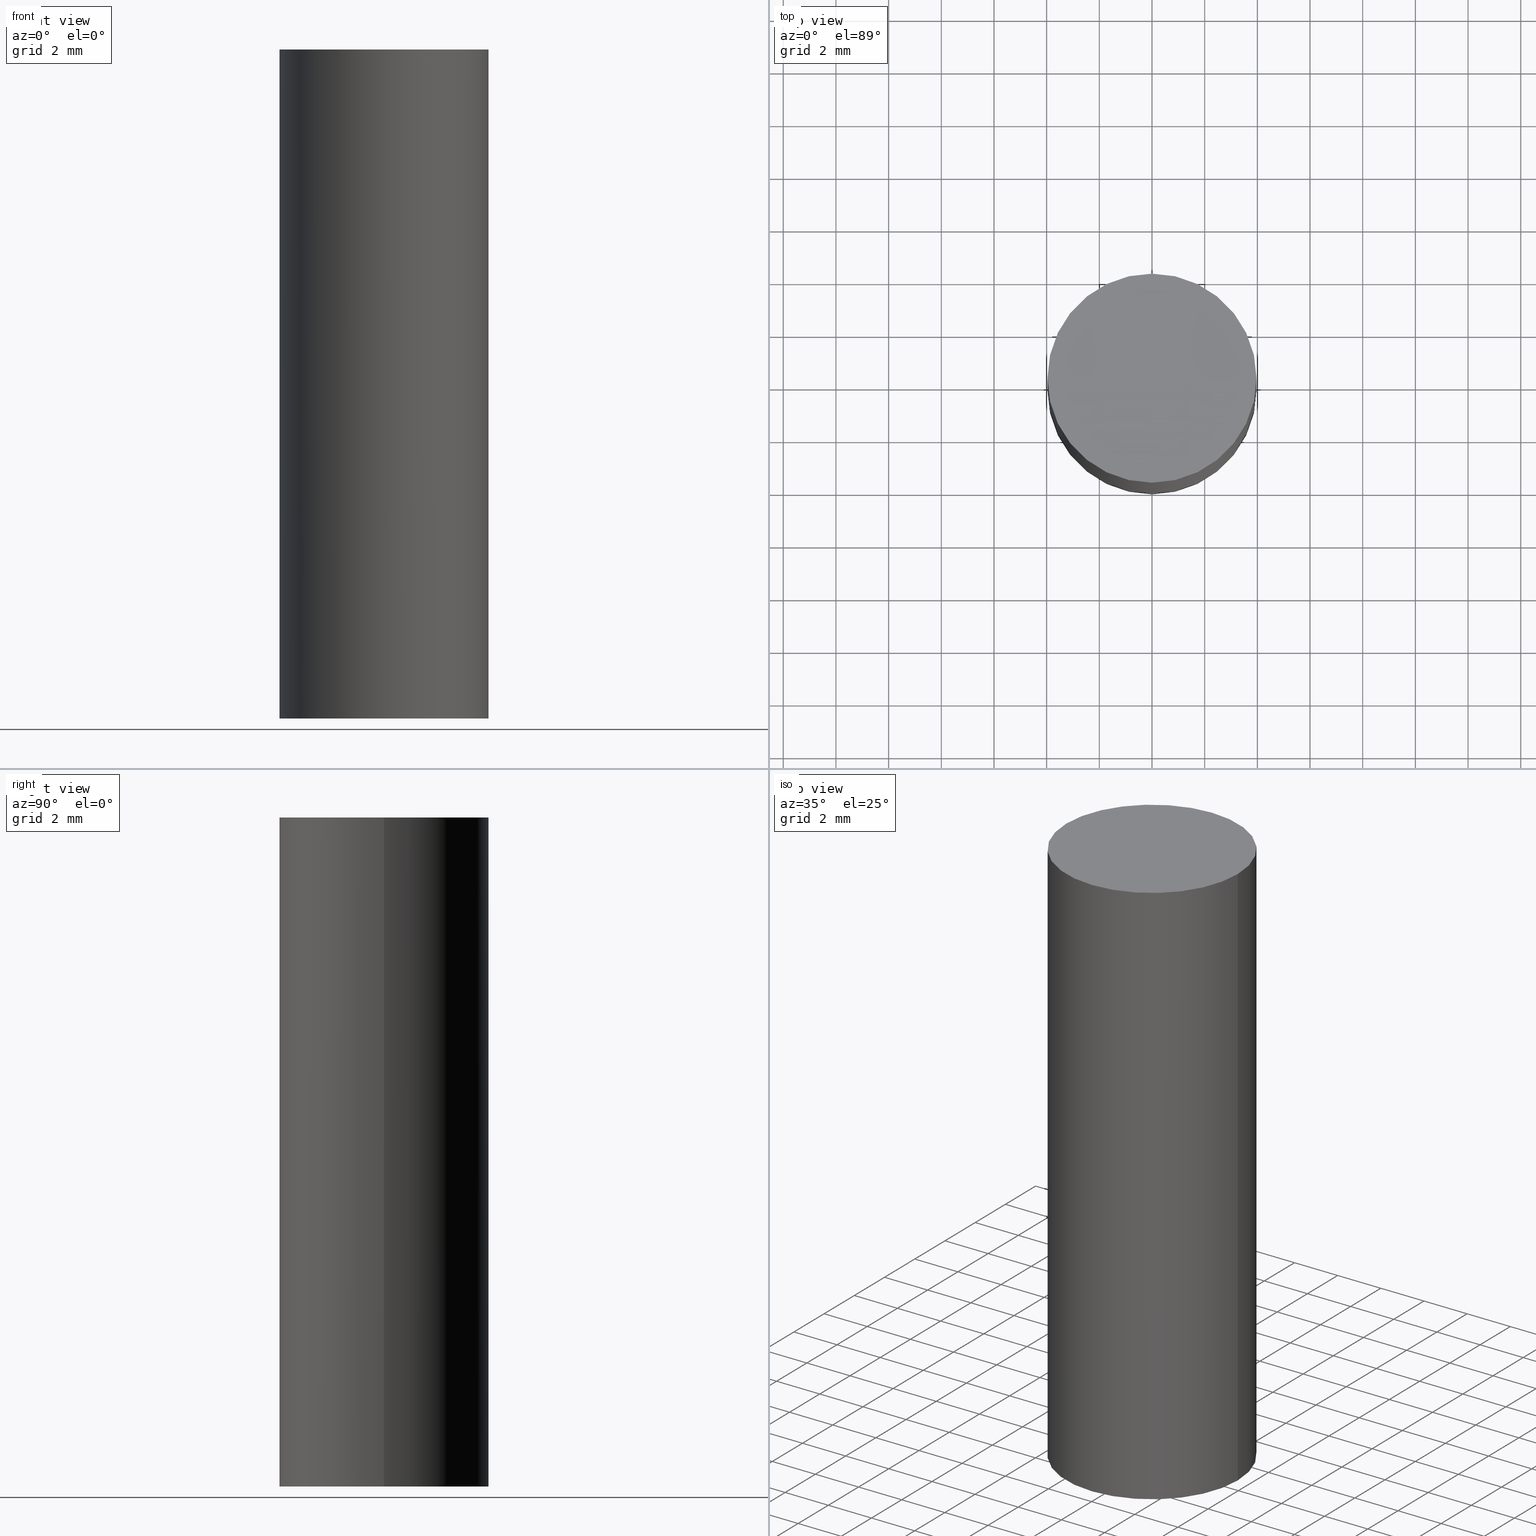
[diagram: canonical four-view strip — front | top / right | iso, engineering-drawing reading convention]
A machine part, canonical four-view strip (front | top / right | iso — engineering-drawing reading convention). The complete STEP part file that produces these views, byte-faithful:
ISO-10303-21;
HEADER;
FILE_DESCRIPTION (( 'STEP AP203' ),
    '1' );
FILE_NAME ('91025.STEP',
    '2024-03-12T20:21:44',
    ( '' ),
    ( '' ),
    'SwSTEP 2.0',
    'SolidWorks 2023',
    '' );
FILE_SCHEMA (( 'CONFIG_CONTROL_DESIGN' ));
ENDSEC;

DATA;
#1 = APPROVAL_ROLE ( '' ) ;
#2 = APPROVAL_PERSON_ORGANIZATION ( #121, #60, #58 ) ;
#3 = CC_DESIGN_PERSON_AND_ORGANIZATION_ASSIGNMENT ( #162, #44, ( #156 ) ) ;
#4 = DIRECTION ( 'NONE',  ( 0.000000000000000000, 0.000000000000000000, 1.000000000000000000 ) ) ;
#5 = COORDINATED_UNIVERSAL_TIME_OFFSET ( 5, 0, .BEHIND. ) ;
#6 = PERSON_AND_ORGANIZATION ( #171, #94 ) ;
#7 = EDGE_LOOP ( 'NONE', ( #35, #172 ) ) ;
#8 = SECURITY_CLASSIFICATION_LEVEL ( 'unclassified' ) ;
#9 = DATE_TIME_ROLE ( 'creation_date' ) ;
#10 = ORIENTED_EDGE ( 'NONE', *, *, #84, .T. ) ;
#11 = VERTEX_POINT ( 'NONE', #100 ) ;
#12 = DIRECTION ( 'NONE',  ( -2.445468806185136597E-29, 3.491481338843145583E-15, 1.000000000000000000 ) ) ;
#13 = CC_DESIGN_APPROVAL ( #178, ( #142 ) ) ;
#14 = CYLINDRICAL_SURFACE ( 'NONE', #53, 0.1562500000000000000 ) ;
#15 = CC_DESIGN_APPROVAL ( #160, ( #174 ) ) ;
#16 = CARTESIAN_POINT ( 'NONE',  ( -0.1562500000000000000, 1.110223024625156540E-15, -7.685836078523291160E-30 ) ) ;
#17 = DESIGN_CONTEXT ( 'detailed design', #118, 'design' ) ;
#18 = APPLICATION_PROTOCOL_DEFINITION ( 'international standard', 'config_control_design', 1994, #87 ) ;
#19 = COORDINATED_UNIVERSAL_TIME_OFFSET ( 5, 0, .BEHIND. ) ;
#20 = LOCAL_TIME ( 16, 21, 44.00000000000000000, #5 ) ;
#21 = VERTEX_POINT ( 'NONE', #90 ) ;
#22 = DATE_AND_TIME ( #133, #169 ) ;
#23 = DIRECTION ( 'NONE',  ( -2.445468806185136597E-29, 3.491481338843145583E-15, 1.000000000000000000 ) ) ;
#24 = COORDINATED_UNIVERSAL_TIME_OFFSET ( 5, 0, .BEHIND. ) ;
#25 = DATE_AND_TIME ( #70, #26 ) ;
#26 = LOCAL_TIME ( 16, 21, 44.00000000000000000, #19 ) ;
#27 = EDGE_CURVE ( 'NONE', #74, #21, #113, .T. ) ;
#28 = FACE_OUTER_BOUND ( 'NONE', #7, .T. ) ;
#29 = PLANE ( 'NONE',  #153 ) ;
#30 = DIRECTION ( 'NONE',  ( 1.000000000000000000, 0.000000000000000000, 0.000000000000000000 ) ) ;
#31 = EDGE_CURVE ( 'NONE', #21, #74, #109, .T. ) ;
#32 =( CONVERSION_BASED_UNIT ( 'INCH', #93 ) LENGTH_UNIT ( ) NAMED_UNIT ( #176 ) );
#33 = ADVANCED_FACE ( 'NONE', ( #97 ), #37, .T. ) ;
#34 = CARTESIAN_POINT ( 'NONE',  ( 0.000000000000000000, 0.000000000000000000, 0.000000000000000000 ) ) ;
#35 = ORIENTED_EDGE ( 'NONE', *, *, #27, .T. ) ;
#36 = CC_DESIGN_SECURITY_CLASSIFICATION ( #48, ( #174 ) ) ;
#37 = CYLINDRICAL_SURFACE ( 'NONE', #177, 0.1562500000000000000 ) ;
#38 = PERSON_AND_ORGANIZATION ( #171, #94 ) ;
#39 = ORIENTED_EDGE ( 'NONE', *, *, #144, .T. ) ;
#40 = DIRECTION ( 'NONE',  ( -2.438088387897960049E-29, 3.491481338843145188E-15, 1.000000000000000000 ) ) ;
#41 = VECTOR ( 'NONE', #173, 39.37007874015748143 ) ;
#42 = DIRECTION ( 'NONE',  ( 1.000000000000000000, -6.982962677686269077E-15, 0.000000000000000000 ) ) ;
#43 = CIRCLE ( 'NONE', #73, 0.1562500000000000000 ) ;
#44 = PERSON_AND_ORGANIZATION_ROLE ( 'design_owner' ) ;
#45 = AXIS2_PLACEMENT_3D ( 'NONE', #124, #12, #64 ) ;
#46 = CARTESIAN_POINT ( 'NONE',  ( 1.222734403092568719E-29, -1.745740669421573186E-15, -0.5000000000000001110 ) ) ;
#47 = CALENDAR_DATE ( 2024, 12, 3 ) ;
#48 = SECURITY_CLASSIFICATION ( '', '', #8 ) ;
#49 = ORIENTED_EDGE ( 'NONE', *, *, #165, .F. ) ;
#50 = MANIFOLD_SOLID_BREP ( 'Body-Move/Copy2', #163 ) ;
#51 = LINE ( 'NONE', #16, #157 ) ;
#52 = CARTESIAN_POINT ( 'NONE',  ( 3.668203209277704895E-29, -5.237222008264718177E-15, -1.500000000000000222 ) ) ;
#53 = AXIS2_PLACEMENT_3D ( 'NONE', #77, #128, #126 ) ;
#54 = COORDINATED_UNIVERSAL_TIME_OFFSET ( 5, 0, .BEHIND. ) ;
#55 = ADVANCED_BREP_SHAPE_REPRESENTATION ( '91025', ( #50, #102 ), #62 ) ;
#56 = AXIS2_PLACEMENT_3D ( 'NONE', #46, #96, #134 ) ;
#57 = APPROVAL_DATE_TIME ( #22, #178 ) ;
#58 = APPROVAL_ROLE ( '' ) ;
#59 = ORIENTED_EDGE ( 'NONE', *, *, #31, .F. ) ;
#60 = APPROVAL ( #104, 'UNSPECIFIED' ) ;
#61 = VERTEX_POINT ( 'NONE', #155 ) ;
#62 =( GEOMETRIC_REPRESENTATION_CONTEXT ( 3 ) GLOBAL_UNCERTAINTY_ASSIGNED_CONTEXT ( ( #79 ) ) GLOBAL_UNIT_ASSIGNED_CONTEXT ( ( #32, #145, #132 ) ) REPRESENTATION_CONTEXT ( 'NONE', 'WORKASPACE' ) );
#63 = ADVANCED_FACE ( 'NONE', ( #76 ), #154, .F. ) ;
#64 = DIRECTION ( 'NONE',  ( 1.000000000000000000, -6.982962677686269077E-15, 0.000000000000000000 ) ) ;
#65 = MECHANICAL_CONTEXT ( 'NONE', #87, 'mechanical' ) ;
#66 = DIRECTION ( 'NONE',  ( -1.000000000000000000, 6.982962677686265922E-15, -4.876176775795935793E-29 ) ) ;
#67 = PRODUCT_RELATED_PRODUCT_CATEGORY ( 'detail', '', ( #156 ) ) ;
#68 = APPROVAL_STATUS ( 'not_yet_approved' ) ;
#69 = CARTESIAN_POINT ( 'NONE',  ( 1.222734403092568719E-29, -1.745740669421573186E-15, -0.5000000000000001110 ) ) ;
#70 = CALENDAR_DATE ( 2024, 12, 3 ) ;
#71 = DIRECTION ( 'NONE',  ( 1.000000000000000000, -6.982962677686266711E-15, 4.876176775795936353E-29 ) ) ;
#72 = CALENDAR_DATE ( 2024, 12, 3 ) ;
#73 = AXIS2_PLACEMENT_3D ( 'NONE', #52, #140, #42 ) ;
#74 = VERTEX_POINT ( 'NONE', #161 ) ;
#75 = FACE_OUTER_BOUND ( 'NONE', #168, .T. ) ;
#76 = FACE_OUTER_BOUND ( 'NONE', #83, .T. ) ;
#77 = CARTESIAN_POINT ( 'NONE',  ( 0.000000000000000000, 0.000000000000000000, 0.000000000000000000 ) ) ;
#78 = LOCAL_TIME ( 16, 21, 44.00000000000000000, #24 ) ;
#79 = UNCERTAINTY_MEASURE_WITH_UNIT (LENGTH_MEASURE( 1.000000000000000082E-05 ), #32, 'distance_accuracy_value', 'NONE');
#80 = DATE_AND_TIME ( #119, #78 ) ;
#81 = CC_DESIGN_PERSON_AND_ORGANIZATION_ASSIGNMENT ( #38, #149, ( #174 ) ) ;
#82 = DATE_TIME_ROLE ( 'classification_date' ) ;
#83 = EDGE_LOOP ( 'NONE', ( #120, #99 ) ) ;
#84 = EDGE_CURVE ( 'NONE', #61, #11, #43, .T. ) ;
#85 = CARTESIAN_POINT ( 'NONE',  ( 0.000000000000000000, 0.000000000000000000, 0.000000000000000000 ) ) ;
#86 = PERSON_AND_ORGANIZATION_ROLE ( 'creator' ) ;
#87 = APPLICATION_CONTEXT ( 'configuration controlled 3d designs of mechanical parts and assemblies' ) ;
#88 = COORDINATED_UNIVERSAL_TIME_OFFSET ( 5, 0, .BEHIND. ) ;
#89 = CC_DESIGN_PERSON_AND_ORGANIZATION_ASSIGNMENT ( #148, #95, ( #48 ) ) ;
#90 = CARTESIAN_POINT ( 'NONE',  ( -0.1562500000000000000, -2.381258314217989437E-15, -0.5000000000000001110 ) ) ;
#91 = APPROVAL_PERSON_ORGANIZATION ( #136, #160, #151 ) ;
#92 = APPLICATION_PROTOCOL_DEFINITION ( 'international standard', 'config_control_design', 1994, #118 ) ;
#93 = LENGTH_MEASURE_WITH_UNIT ( LENGTH_MEASURE( 0.02539999999999999897 ), #175 );
#94 = ORGANIZATION ( 'UNSPECIFIED', 'UNSPECIFIED', '' ) ;
#95 = PERSON_AND_ORGANIZATION_ROLE ( 'classification_officer' ) ;
#96 = DIRECTION ( 'NONE',  ( -2.445468806185136597E-29, 3.491481338843145583E-15, 1.000000000000000000 ) ) ;
#97 = FACE_OUTER_BOUND ( 'NONE', #135, .T. ) ;
#98 = CC_DESIGN_APPROVAL ( #60, ( #48 ) ) ;
#99 = ORIENTED_EDGE ( 'NONE', *, *, #84, .F. ) ;
#100 = CARTESIAN_POINT ( 'NONE',  ( 0.1562500000000000000, -6.328309926653198139E-15, -1.500000000000000222 ) ) ;
#101 = CARTESIAN_POINT ( 'NONE',  ( 1.091087918388491401E-15, 0.1562499999999982514, -0.5000000000000006661 ) ) ;
#102 = AXIS2_PLACEMENT_3D ( 'NONE', #34, #4, #30 ) ;
#103 = APPROVAL_DATE_TIME ( #105, #60 ) ;
#104 = APPROVAL_STATUS ( 'not_yet_approved' ) ;
#105 = DATE_AND_TIME ( #47, #20 ) ;
#106 = ORIENTED_EDGE ( 'NONE', *, *, #112, .F. ) ;
#107 = CC_DESIGN_DATE_AND_TIME_ASSIGNMENT ( #25, #9, ( #142 ) ) ;
#108 = ORIENTED_EDGE ( 'NONE', *, *, #112, .T. ) ;
#109 = CIRCLE ( 'NONE', #147, 0.1562500000000000000 ) ;
#110 = CARTESIAN_POINT ( 'NONE',  ( 0.1562500000000000000, -1.091087918388479174E-15, 7.619026212181150377E-30 ) ) ;
#111 = CC_DESIGN_PERSON_AND_ORGANIZATION_ASSIGNMENT ( #115, #167, ( #142 ) ) ;
#112 = EDGE_CURVE ( 'NONE', #61, #21, #51, .T. ) ;
#113 = CIRCLE ( 'NONE', #56, 0.1562500000000000000 ) ;
#114 = ADVANCED_FACE ( 'NONE', ( #28 ), #29, .F. ) ;
#115 = PERSON_AND_ORGANIZATION ( #171, #94 ) ;
#116 = DIRECTION ( 'NONE',  ( -2.445468806185136597E-29, 3.491481338843145583E-15, 1.000000000000000000 ) ) ;
#117 = DATE_AND_TIME ( #72, #122 ) ;
#118 = APPLICATION_CONTEXT ( 'configuration controlled 3d designs of mechanical parts and assemblies' ) ;
#119 = CALENDAR_DATE ( 2024, 12, 3 ) ;
#120 = ORIENTED_EDGE ( 'NONE', *, *, #144, .F. ) ;
#121 = PERSON_AND_ORGANIZATION ( #171, #94 ) ;
#122 = LOCAL_TIME ( 16, 21, 44.00000000000000000, #88 ) ;
#123 = ORIENTED_EDGE ( 'NONE', *, *, #165, .T. ) ;
#124 = CARTESIAN_POINT ( 'NONE',  ( 3.668203209277704895E-29, -5.237222008264718177E-15, -1.500000000000000222 ) ) ;
#125 = AXIS2_PLACEMENT_3D ( 'NONE', #158, #40, #130 ) ;
#126 = DIRECTION ( 'NONE',  ( 1.000000000000000000, -6.982962677686266711E-15, 4.876176775795936353E-29 ) ) ;
#127 = ADVANCED_FACE ( 'NONE', ( #75 ), #14, .T. ) ;
#128 = DIRECTION ( 'NONE',  ( -2.445468806185136597E-29, 3.491481338843145583E-15, 1.000000000000000000 ) ) ;
#129 = DIRECTION ( 'NONE',  ( 2.438088387897960049E-29, -3.491481338843145188E-15, -1.000000000000000000 ) ) ;
#130 = DIRECTION ( 'NONE',  ( 1.000000000000000000, -6.982962677686265922E-15, 4.876176775795935793E-29 ) ) ;
#131 = PERSON_AND_ORGANIZATION ( #171, #94 ) ;
#132 =( NAMED_UNIT ( * ) SI_UNIT ( $, .STERADIAN. ) SOLID_ANGLE_UNIT ( ) );
#133 = CALENDAR_DATE ( 2024, 12, 3 ) ;
#134 = DIRECTION ( 'NONE',  ( 1.000000000000000000, -6.982962677686268288E-15, 0.000000000000000000 ) ) ;
#135 = EDGE_LOOP ( 'NONE', ( #106, #10, #123, #59 ) ) ;
#136 = PERSON_AND_ORGANIZATION ( #171, #94 ) ;
#137 = ORIENTED_EDGE ( 'NONE', *, *, #27, .F. ) ;
#138 = APPROVAL_DATE_TIME ( #117, #160 ) ;
#139 = APPROVAL_PERSON_ORGANIZATION ( #131, #178, #1 ) ;
#140 = DIRECTION ( 'NONE',  ( -2.445468806185136597E-29, 3.491481338843145583E-15, 1.000000000000000000 ) ) ;
#141 = LINE ( 'NONE', #110, #41 ) ;
#142 = PRODUCT_DEFINITION ( 'UNKNOWN', '', #174, #17 ) ;
#143 = DIRECTION ( 'NONE',  ( -2.445468806185136877E-29, 3.491481338843145188E-15, 1.000000000000000000 ) ) ;
#144 = EDGE_CURVE ( 'NONE', #11, #61, #146, .T. ) ;
#145 =( NAMED_UNIT ( * ) PLANE_ANGLE_UNIT ( ) SI_UNIT ( $, .RADIAN. ) );
#146 = CIRCLE ( 'NONE', #45, 0.1562500000000000000 ) ;
#147 = AXIS2_PLACEMENT_3D ( 'NONE', #69, #116, #166 ) ;
#148 = PERSON_AND_ORGANIZATION ( #171, #94 ) ;
#149 = PERSON_AND_ORGANIZATION_ROLE ( 'design_supplier' ) ;
#150 = CC_DESIGN_PERSON_AND_ORGANIZATION_ASSIGNMENT ( #6, #86, ( #174 ) ) ;
#151 = APPROVAL_ROLE ( '' ) ;
#152 = CC_DESIGN_DATE_AND_TIME_ASSIGNMENT ( #80, #82, ( #48 ) ) ;
#153 = AXIS2_PLACEMENT_3D ( 'NONE', #101, #129, #66 ) ;
#154 = PLANE ( 'NONE',  #125 ) ;
#155 = CARTESIAN_POINT ( 'NONE',  ( -0.1562500000000000000, -2.381258314217989437E-15, -1.500000000000000222 ) ) ;
#156 = PRODUCT ( '91025', '91025', '', ( #65 ) ) ;
#157 = VECTOR ( 'NONE', #143, 39.37007874015748143 ) ;
#158 = CARTESIAN_POINT ( 'NONE',  ( 3.576687321579069994E-29, -5.368277968210015545E-15, -1.500000000000000222 ) ) ;
#159 = PRODUCT_DEFINITION_SHAPE ( 'NONE', 'NONE',  #142 ) ;
#160 = APPROVAL ( #68, 'UNSPECIFIED' ) ;
#161 = CARTESIAN_POINT ( 'NONE',  ( 0.1562500000000000000, -2.836828587810052556E-15, -0.5000000000000001110 ) ) ;
#162 = PERSON_AND_ORGANIZATION ( #171, #94 ) ;
#163 = CLOSED_SHELL ( 'NONE', ( #127, #63, #33, #114 ) ) ;
#164 = APPROVAL_STATUS ( 'not_yet_approved' ) ;
#165 = EDGE_CURVE ( 'NONE', #11, #74, #141, .T. ) ;
#166 = DIRECTION ( 'NONE',  ( 1.000000000000000000, -6.982962677686268288E-15, 0.000000000000000000 ) ) ;
#167 = PERSON_AND_ORGANIZATION_ROLE ( 'creator' ) ;
#168 = EDGE_LOOP ( 'NONE', ( #39, #108, #137, #49 ) ) ;
#169 = LOCAL_TIME ( 16, 21, 44.00000000000000000, #54 ) ;
#170 = SHAPE_DEFINITION_REPRESENTATION ( #159, #55 ) ;
#171 = PERSON ( 'UNSPECIFIED', 'UNSPECIFIED', 'UNSPECIFIED', ('UNSPECIFIED'), ('UNSPECIFIED'), ('UNSPECIFIED') ) ;
#172 = ORIENTED_EDGE ( 'NONE', *, *, #31, .T. ) ;
#173 = DIRECTION ( 'NONE',  ( -2.445468806185136877E-29, 3.491481338843145188E-15, 1.000000000000000000 ) ) ;
#174 = PRODUCT_DEFINITION_FORMATION_WITH_SPECIFIED_SOURCE ( 'ANY', '', #156, .NOT_KNOWN. ) ;
#175 =( LENGTH_UNIT ( ) NAMED_UNIT ( * ) SI_UNIT ( $, .METRE. ) );
#176 = DIMENSIONAL_EXPONENTS ( 1.000000000000000000, 0.000000000000000000, 0.000000000000000000, 0.000000000000000000, 0.000000000000000000, 0.000000000000000000, 0.000000000000000000 ) ;
#177 = AXIS2_PLACEMENT_3D ( 'NONE', #85, #23, #71 ) ;
#178 = APPROVAL ( #164, 'UNSPECIFIED' ) ;
ENDSEC;
END-ISO-10303-21;
